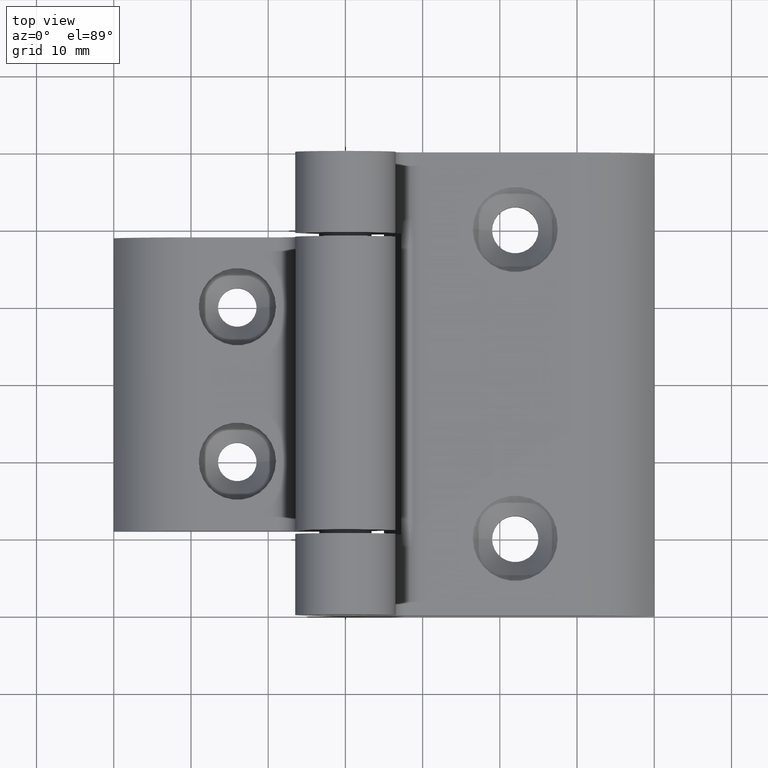
[diagram: clean part render]
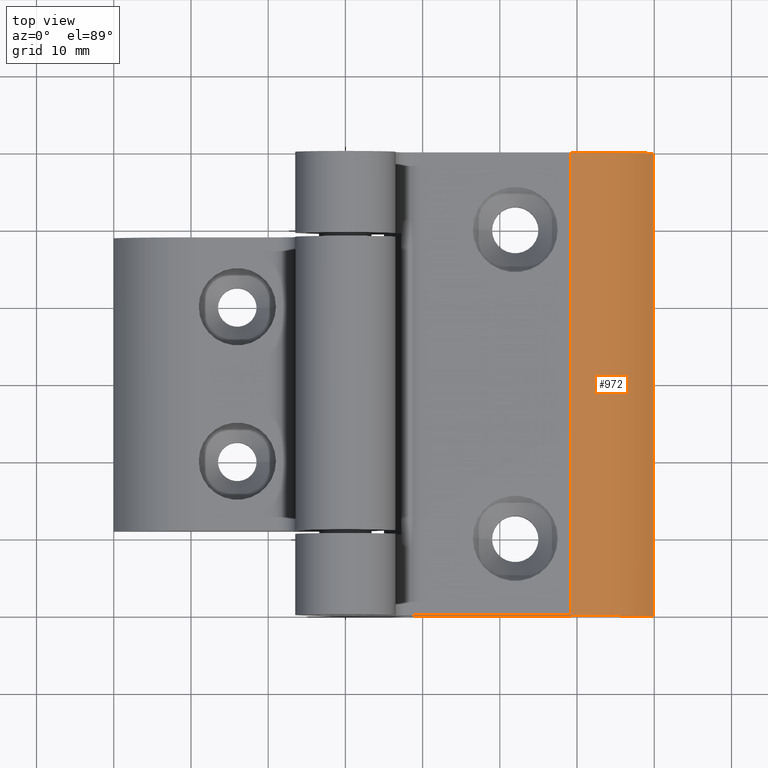
[diagram: same view with one face highlighted and labeled with its STEP entity id]
A machine part, top view. The second image highlights one B-rep face of the part: STEP entity #972.
In plain terms, the highlighted cylindrical surface (partial cylindrical patch) has radius 12 mm, axis along (0, 1, 0).
Its self-contained STEP definition (entity closure, byte-faithful):
#41=B_SPLINE_CURVE_WITH_KNOTS('',3,(#1692,#1693,#1694,#1695),
 .UNSPECIFIED.,.F.,.F.,(4,4),(0.,6.),.UNSPECIFIED.);
#96=CYLINDRICAL_SURFACE('',#1140,12.);
#129=FACE_OUTER_BOUND('',#183,.T.);
#183=EDGE_LOOP('',(#793,#794,#795,#796));
#258=LINE('',#1710,#325);
#325=VECTOR('',#1356,10.);
#381=CIRCLE('',#1139,12.);
#382=CIRCLE('',#1141,12.);
#467=VERTEX_POINT('',#1686);
#468=VERTEX_POINT('',#1691);
#469=VERTEX_POINT('',#1704);
#470=VERTEX_POINT('',#1708);
#586=EDGE_CURVE('',#467,#468,#41,.T.);
#590=EDGE_CURVE('',#468,#469,#381,.T.);
#592=EDGE_CURVE('',#470,#467,#382,.T.);
#593=EDGE_CURVE('',#469,#470,#258,.T.);
#793=ORIENTED_EDGE('',*,*,#586,.F.);
#794=ORIENTED_EDGE('',*,*,#592,.F.);
#795=ORIENTED_EDGE('',*,*,#593,.F.);
#796=ORIENTED_EDGE('',*,*,#590,.F.);
#972=ADVANCED_FACE('',(#129),#96,.T.);
#1139=AXIS2_PLACEMENT_3D('',#1705,#1349,#1350);
#1140=AXIS2_PLACEMENT_3D('',#1707,#1352,#1353);
#1141=AXIS2_PLACEMENT_3D('',#1709,#1354,#1355);
#1349=DIRECTION('center_axis',(0.,-1.,0.));
#1350=DIRECTION('ref_axis',(0.,0.,1.));
#1352=DIRECTION('center_axis',(0.,1.,0.));
#1353=DIRECTION('ref_axis',(0.,0.,1.));
#1354=DIRECTION('center_axis',(0.,1.,0.));
#1355=DIRECTION('ref_axis',(0.,0.,1.));
#1356=DIRECTION('',(0.,1.,0.));
#1686=CARTESIAN_POINT('',(39.9140261061395,30.,-11.1248543994776));
#1691=CARTESIAN_POINT('',(39.9140261061395,-30.,-11.1248543994776));
#1692=CARTESIAN_POINT('Ctrl Pts',(39.9140261061395,30.,-11.1248543994776));
#1693=CARTESIAN_POINT('Ctrl Pts',(39.9140261061395,10.,-11.1248543994776));
#1694=CARTESIAN_POINT('Ctrl Pts',(39.9140261061395,-10.,-11.1248543994776));
#1695=CARTESIAN_POINT('Ctrl Pts',(39.9140261061395,-30.,-11.1248543994776));
#1704=CARTESIAN_POINT('',(29.1851953323234,-30.,-4.5));
#1705=CARTESIAN_POINT('Origin',(29.1851953323234,-30.,-16.5));
#1707=CARTESIAN_POINT('Origin',(29.1851953323234,0.,-16.5));
#1708=CARTESIAN_POINT('',(29.1851953323234,30.,-4.5));
#1709=CARTESIAN_POINT('Origin',(29.1851953323234,30.,-16.5));
#1710=CARTESIAN_POINT('',(29.1851953323234,0.,-4.5));